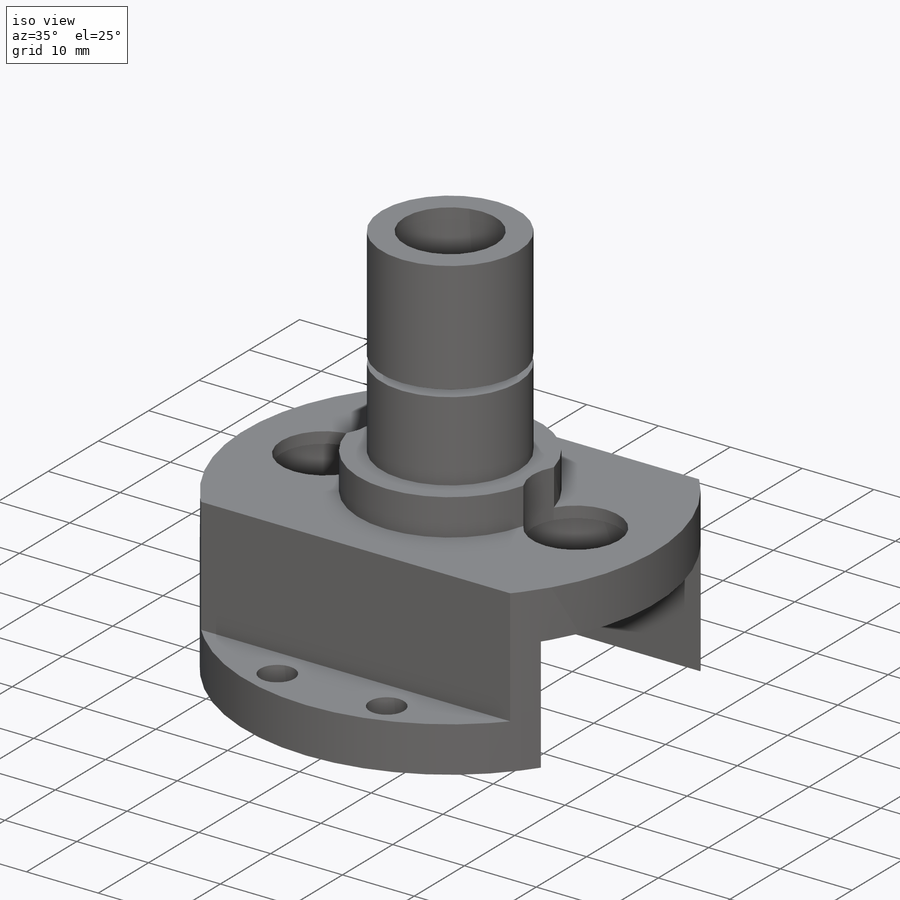
[diagram: iso view]
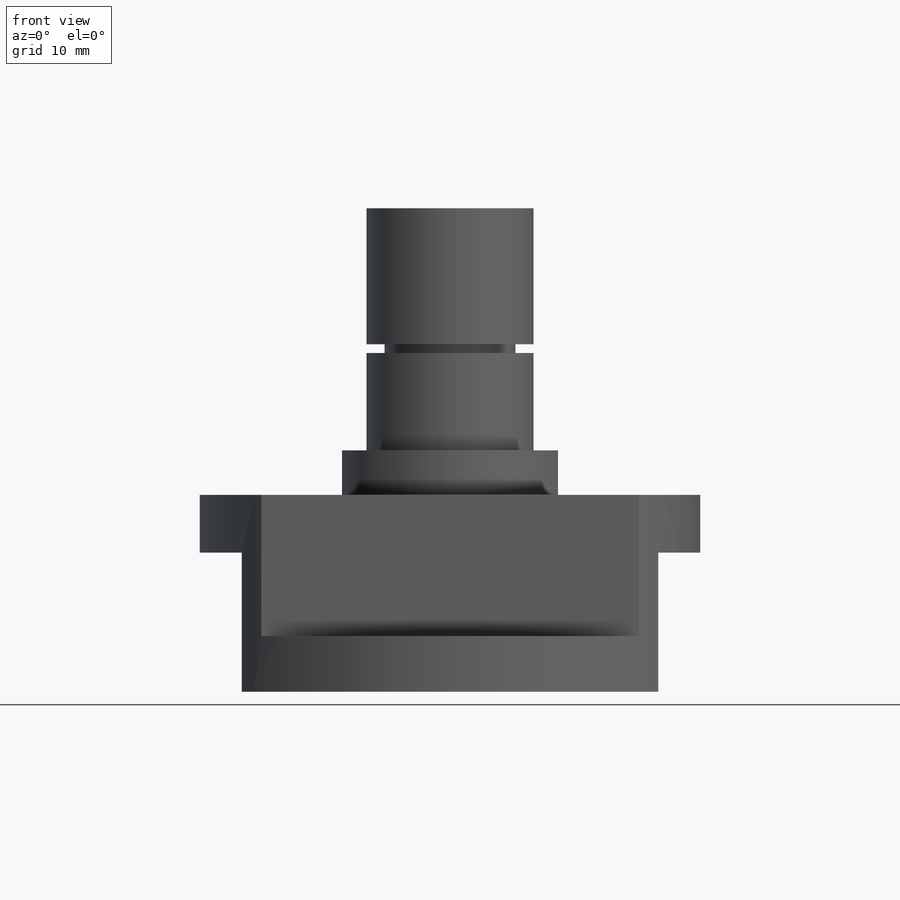
[diagram: front view]
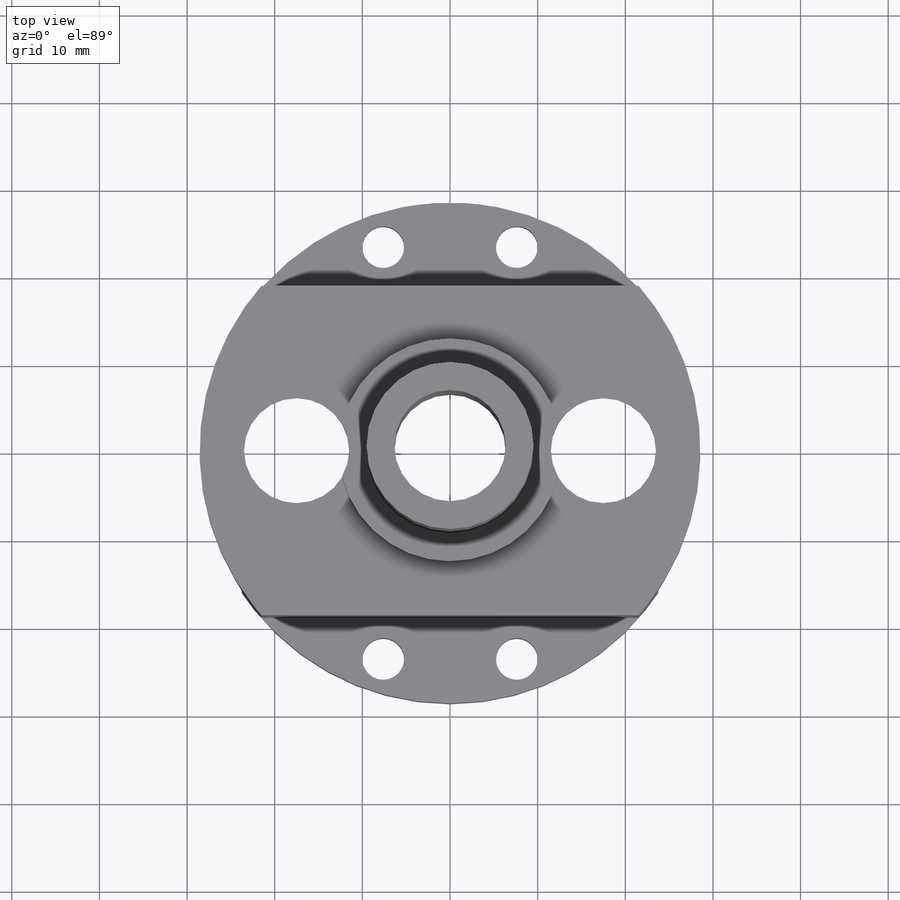
[diagram: top view]
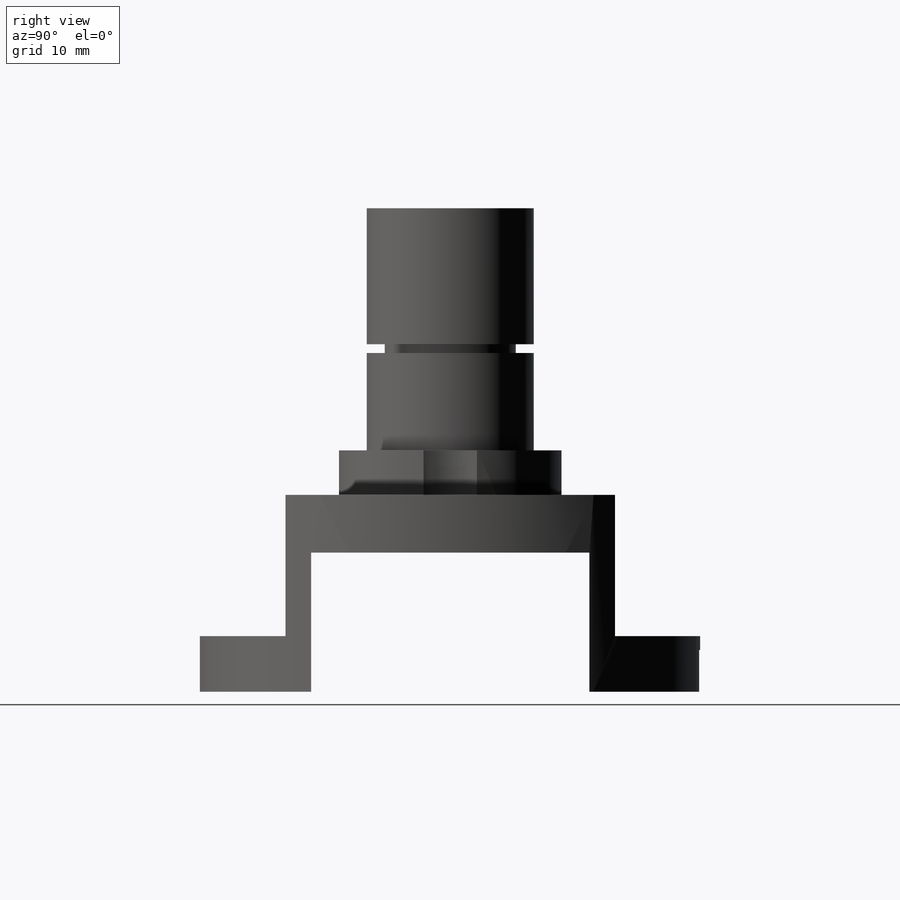
[diagram: right view]
SOLIDWORKS PART (.sldprt)
format: sldprt  version: not decoded by parser v0  size: 669,696 bytes
history: native  units: mm
features: sketch x13, cut_extrude x8, extrude x6, plane x2, fillet x2, material x1 (+12 scaffold rows collapsed)
feature tree (44):
  scaffold x12  (default folders/planes/origin — collapsed)
  material  "Material <not specified>"
  sketch  "Sketch1"  dims[D1=25.4mm D2=12.7mm]
  extrude  "Boss-Extrude1"  Depth=5.08mm
  sketch  "Sketch2"  dims[D1=19.05mm D2=3.175mm]
  extrude  "Boss-Extrude2"  Depth=27.6225mm
  plane  "Plane1"  Offset=11.1125mm
  sketch  "Sketch3"  dims[D1=14.9352mm]
  cut_extrude  "Cut-Extrude1"  Depth=0.9906mm
  sketch  "Sketch4"  dims[D1=2.8702mm D4=31.75mm D2=13.462mm]
  sketch  "Sketch5"  dims[D1=15.875mm D2=35.0mm D3=12.0mm D4=57.15mm]
  extrude  "Boss-Extrude4"  Depth=6.5875mm
  sketch  "Sketch6"  dims[D1=16.0mm]
  cut_extrude  "Cut-Extrude5"  Depth=5mm
  sketch  "Sketch8"  dims[D1=31.75mm]
  extrude  "Boss-Extrude5"  Depth=15.875mm
  sketch  "Sketch9"  dims[D3=4.7625mm D1=7.62mm D2=23.495mm D4=7.62mm]
  cut_extrude  "Cut-Extrude7"  [1 undecoded]
  plane  "Plane2"
  extrude  "Axis2"  [1 undecoded]
  extrude  "Axis3"  [1 undecoded]
  sketch  "Sketch12"  dims[D1=4.699mm]
  cut_extrude  "Cut-Extrude10"  Depth=6.35mm
  cut_extrude  "Cut-Extrude11"  [1 undecoded]
  sketch  "Sketch5<4>"
  sketch  "Sketch11"  dims[D1=6.35mm]
  cut_extrude  "Cut-Extrude9"  Depth=1.5875mm
  sketch  "Sketch13"  dims[c1.D1=6.5875mm c2.D1=0.125deg]
  cut_extrude  "Cut-Extrude12"  Depth=6.35mm
  fillet  "Fillet1"  Radius=3.175mm
  sketch  "Sketch14"
  cut_extrude  "Cut-Extrude13"  Depth=1.5875mm
  fillet  "Fillet2"  Radius=3.175mm
decode coverage: 23 of 29 modeling features carry decoded parameters
note: 4 parameter values undecoded
summary: no parameter record found for 4 features
note: suppression state not decoded; provenance and decode notes live in map.json
